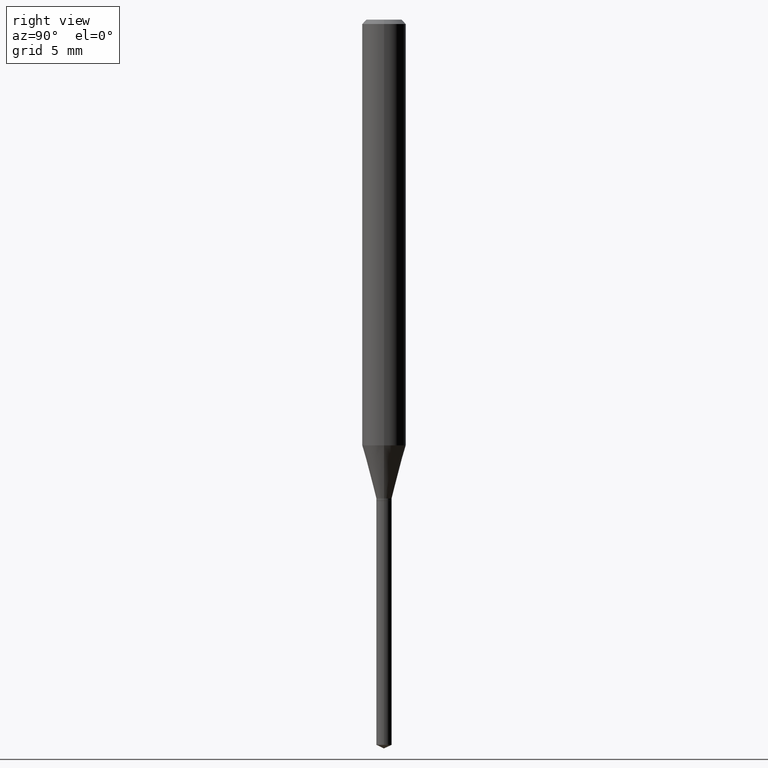
[diagram: clean part render]
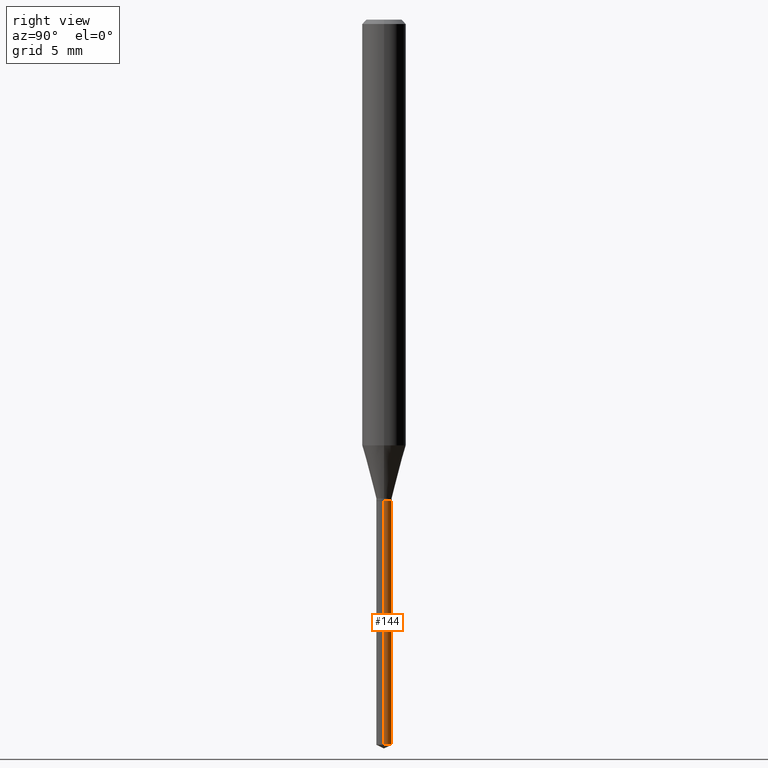
[diagram: same view with one face highlighted and labeled with its STEP entity id]
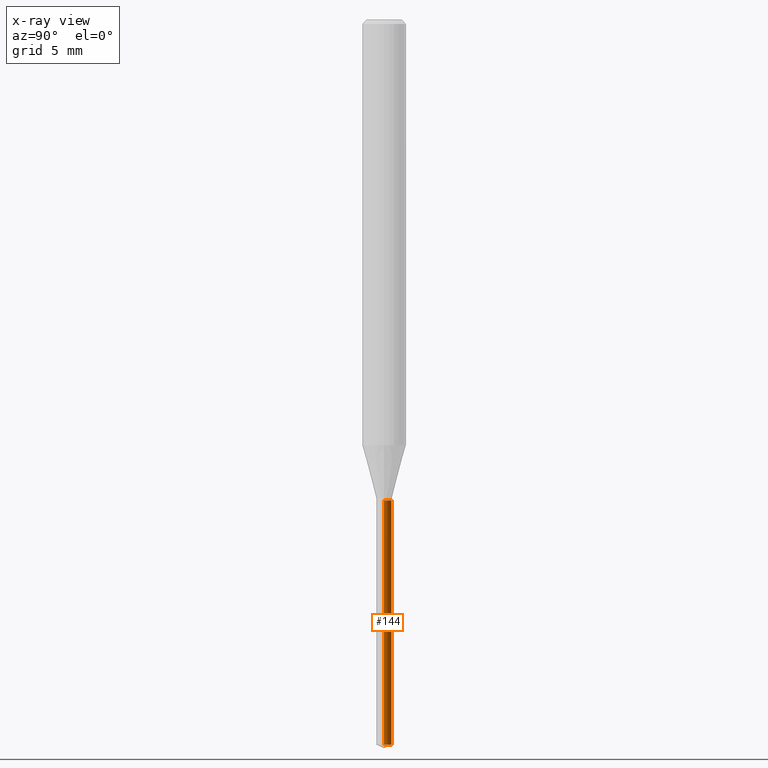
[diagram: x-ray of the same camera — body ghosted, the highlighted face saturated]
A machine part, right view. The second image highlights one B-rep face of the part: STEP entity #144.
The next image is the same camera in x-ray: the body ghosted, the highlighted face saturated — about 0% of this face is hidden behind the body in this view.
In plain terms, the highlighted cylindrical surface (edge-blend (fillet) strip) has radius 0.5245 mm, axis along (-0, 0, 1).
Its self-contained STEP definition (entity closure, byte-faithful):
#20 = VERTEX_POINT ( 'NONE', #437 ) ;
#31 = EDGE_CURVE ( 'NONE', #50, #20, #75, .T. ) ;
#40 = EDGE_LOOP ( 'NONE', ( #58, #479, #166, #164 ) ) ;
#47 = CARTESIAN_POINT ( 'NONE',  ( 0.02065000000000000169, -4.682076475388656376E-15, -1.299699999999999855 ) ) ;
#48 = VERTEX_POINT ( 'NONE', #319 ) ;
#50 = VERTEX_POINT ( 'NONE', #155 ) ;
#55 = DIRECTION ( 'NONE',  ( 1.000000000000000000, -6.982962677686264344E-15, 0.000000000000000000 ) ) ;
#58 = ORIENTED_EDGE ( 'NONE', *, *, #31, .T. ) ;
#75 = CIRCLE ( 'NONE', #160, 0.02065000000000000169 ) ;
#84 = DIRECTION ( 'NONE',  ( 1.000000000000000000, -6.982962677686264344E-15, 0.000000000000000000 ) ) ;
#89 = DIRECTION ( 'NONE',  ( -2.445468806185136877E-29, 3.491481338843145188E-15, 1.000000000000000000 ) ) ;
#106 = AXIS2_PLACEMENT_3D ( 'NONE', #126, #169, #84 ) ;
#126 = CARTESIAN_POINT ( 'NONE',  ( 3.178375807398821559E-29, -4.537878296094435448E-15, -1.299699999999999855 ) ) ;
#132 = LINE ( 'NONE', #379, #349 ) ;
#144 = ADVANCED_FACE ( 'NONE', ( #276 ), #427, .T. ) ;
#155 = CARTESIAN_POINT ( 'NONE',  ( 0.02065000000000000863, -6.985304577827923654E-15, -1.959370746859099510 ) ) ;
#160 = AXIS2_PLACEMENT_3D ( 'NONE', #217, #250, #55 ) ;
#164 = ORIENTED_EDGE ( 'NONE', *, *, #165, .F. ) ;
#165 = EDGE_CURVE ( 'NONE', #50, #48, #242, .T. ) ;
#166 = ORIENTED_EDGE ( 'NONE', *, *, #414, .F. ) ;
#169 = DIRECTION ( 'NONE',  ( -2.445468806185136597E-29, 3.491481338843145583E-15, 1.000000000000000000 ) ) ;
#185 = AXIS2_PLACEMENT_3D ( 'NONE', #439, #252, #259 ) ;
#217 = CARTESIAN_POINT ( 'NONE',  ( 4.791580041195601474E-29, -6.841106398533702726E-15, -1.959370746859099510 ) ) ;
#239 = CIRCLE ( 'NONE', #185, 0.02065000000000000169 ) ;
#242 = LINE ( 'NONE', #47, #341 ) ;
#250 = DIRECTION ( 'NONE',  ( -2.445468806185136597E-29, 3.491481338843145583E-15, 1.000000000000000000 ) ) ;
#252 = DIRECTION ( 'NONE',  ( -2.445468806185136597E-29, 3.491481338843145583E-15, 1.000000000000000000 ) ) ;
#259 = DIRECTION ( 'NONE',  ( 1.000000000000000000, -6.982962677686264344E-15, 0.000000000000000000 ) ) ;
#276 = FACE_OUTER_BOUND ( 'NONE', #40, .T. ) ;
#287 = CARTESIAN_POINT ( 'NONE',  ( -0.02065000000000000169, -5.542765272379608387E-15, -1.299699999999999855 ) ) ;
#290 = EDGE_CURVE ( 'NONE', #20, #326, #132, .T. ) ;
#319 = CARTESIAN_POINT ( 'NONE',  ( 0.02065000000000000169, -4.682076475388656376E-15, -1.299699999999999855 ) ) ;
#326 = VERTEX_POINT ( 'NONE', #287 ) ;
#341 = VECTOR ( 'NONE', #346, 39.37007874015748143 ) ;
#346 = DIRECTION ( 'NONE',  ( -2.445468806185136877E-29, 3.491481338843145188E-15, 1.000000000000000000 ) ) ;
#349 = VECTOR ( 'NONE', #89, 39.37007874015748143 ) ;
#379 = CARTESIAN_POINT ( 'NONE',  ( -0.02065000000000000169, -4.391151221159975142E-15, -1.299699999999999855 ) ) ;
#414 = EDGE_CURVE ( 'NONE', #48, #326, #239, .T. ) ;
#427 = CYLINDRICAL_SURFACE ( 'NONE', #106, 0.02065000000000000169 ) ;
#437 = CARTESIAN_POINT ( 'NONE',  ( -0.02065000000000000863, -6.694379323599242420E-15, -1.959370746859099510 ) ) ;
#439 = CARTESIAN_POINT ( 'NONE',  ( 3.178375807398821559E-29, -4.537878296094435448E-15, -1.299699999999999855 ) ) ;
#479 = ORIENTED_EDGE ( 'NONE', *, *, #290, .T. ) ;